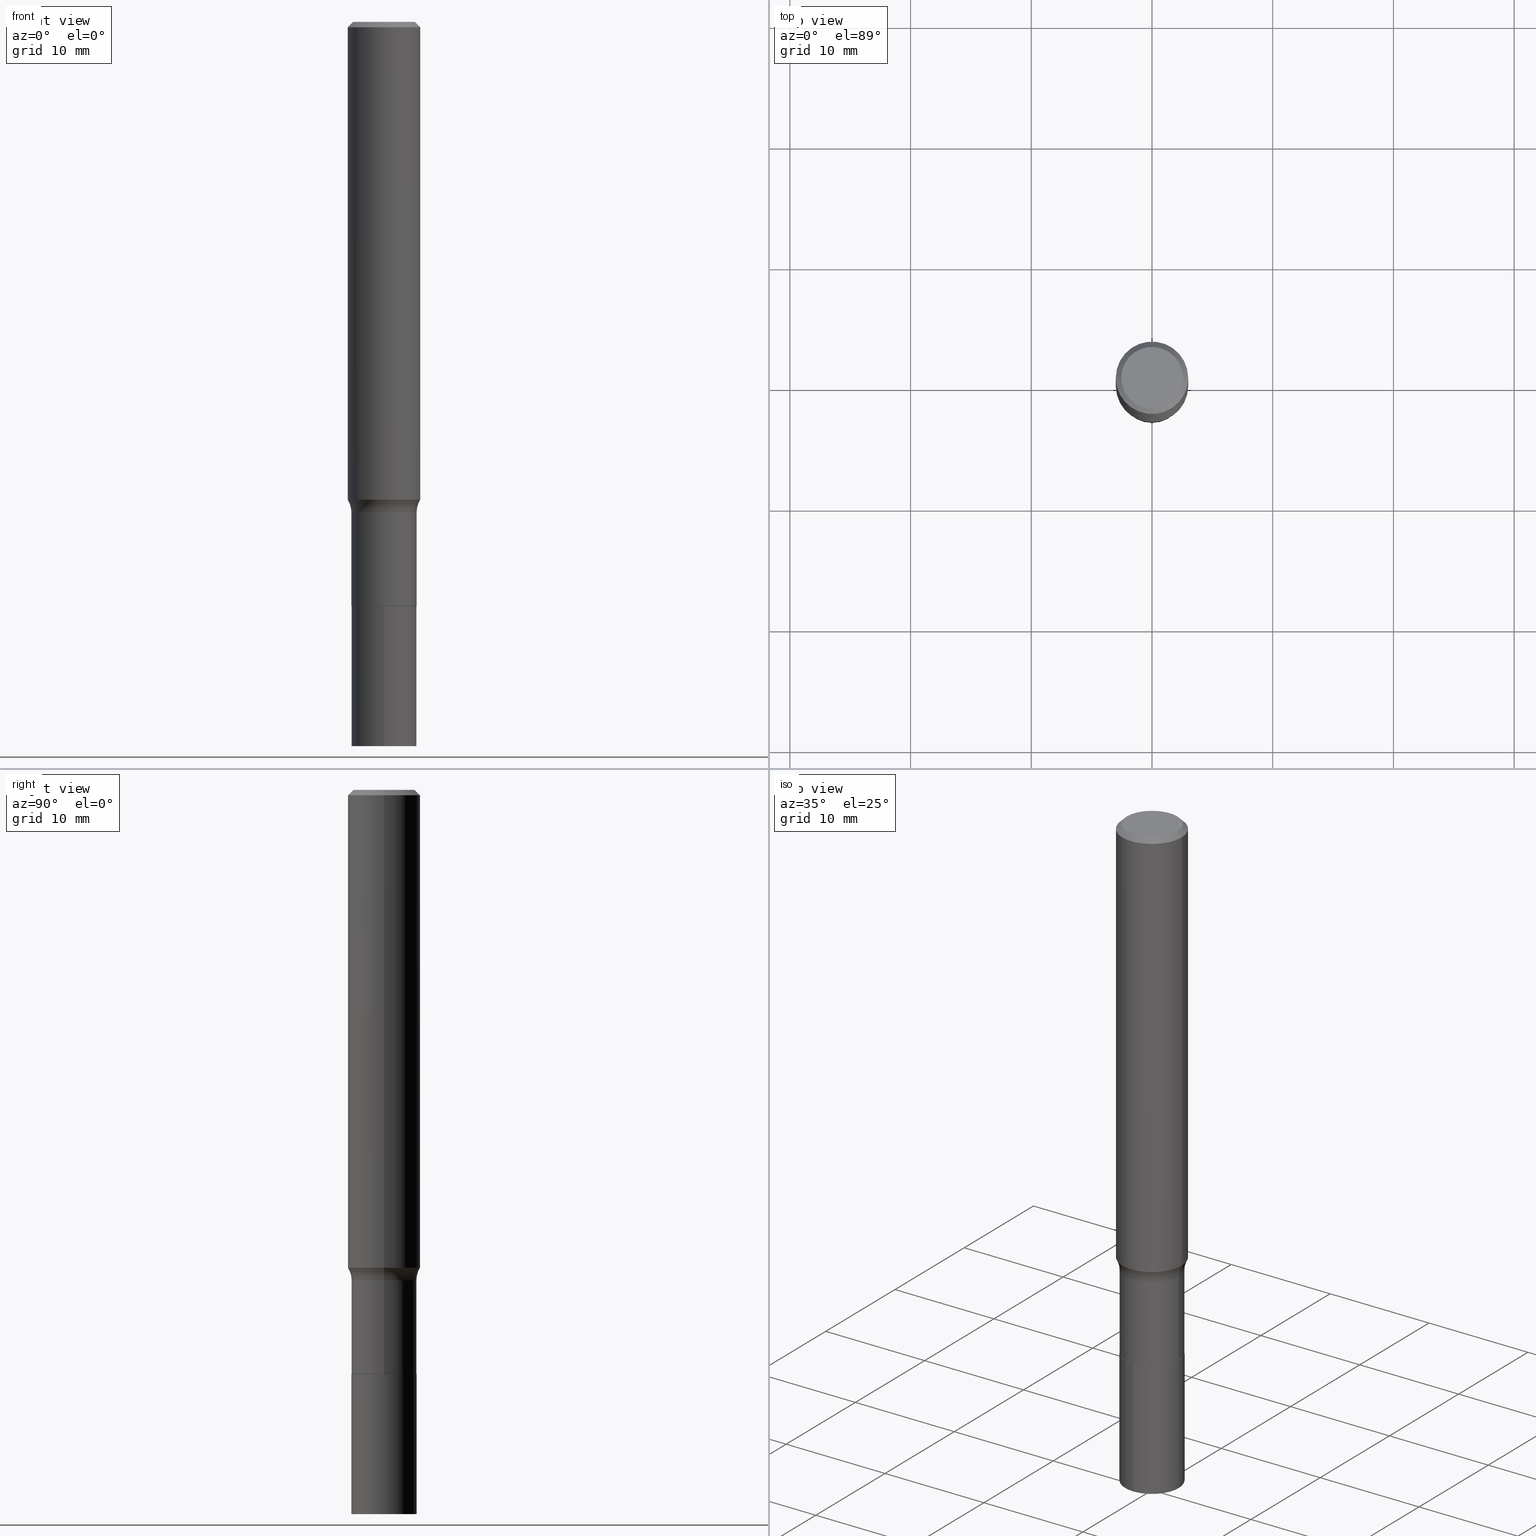
[diagram: canonical four-view strip — front | top / right | iso, engineering-drawing reading convention]
A machine part, canonical four-view strip (front | top / right | iso — engineering-drawing reading convention). The complete STEP part file that produces these views, byte-faithful:
ISO-10303-21;
HEADER;
FILE_DESCRIPTION (( 'STEP AP203' ),
    '1' );
FILE_NAME ('67099.STEP',
    '2024-04-19T15:51:24',
    ( '' ),
    ( '' ),
    'SwSTEP 2.0',
    'SolidWorks 2023',
    '' );
FILE_SCHEMA (( 'CONFIG_CONTROL_DESIGN' ));
ENDSEC;

DATA;
#1 = ORIENTED_EDGE ( 'NONE', *, *, #33, .T. ) ;
#2 = DIRECTION ( 'NONE',  ( -1.000000000000000000, 7.105427357601001859E-15, 0.000000000000000000 ) ) ;
#3 = CARTESIAN_POINT ( 'NONE',  ( 0.1862999999999999656, -6.888343533403638572E-15, -1.600300000000000500 ) ) ;
#4 = VECTOR ( 'NONE', #236, 39.37007874015748143 ) ;
#5 = CARTESIAN_POINT ( 'NONE',  ( -0.1058000000000000052, -5.900216032329776222E-15, -1.905200000000000227 ) ) ;
#6 = EDGE_CURVE ( 'NONE', #136, #96, #329, .T. ) ;
#7 = PRODUCT_RELATED_PRODUCT_CATEGORY ( 'detail', '', ( #159 ) ) ;
#8 = DIRECTION ( 'NONE',  ( 1.000000000000000000, -6.982962677686269077E-15, 0.000000000000000000 ) ) ;
#9 = CARTESIAN_POINT ( 'NONE',  ( 4.659107169543922763E-29, -6.651970246763962256E-15, -1.905200000000000227 ) ) ;
#10 = AXIS2_PLACEMENT_3D ( 'NONE', #190, #306, #12 ) ;
#11 =( GEOMETRIC_REPRESENTATION_CONTEXT ( 3 ) GLOBAL_UNCERTAINTY_ASSIGNED_CONTEXT ( ( #22 ) ) GLOBAL_UNIT_ASSIGNED_CONTEXT ( ( #44, #356, #459 ) ) REPRESENTATION_CONTEXT ( 'NONE', 'WORKASPACE' ) );
#12 = DIRECTION ( 'NONE',  ( -6.982962677686265922E-15, -1.000000000000000000, 2.569941668545873170E-15 ) ) ;
#13 = DIRECTION ( 'NONE',  ( 1.000000000000000000, -6.982962677686266711E-15, 0.000000000000000000 ) ) ;
#14 = ORIENTED_EDGE ( 'NONE', *, *, #350, .T. ) ;
#15 = DIRECTION ( 'NONE',  ( -2.480044218410043909E-29, 3.441967380626826386E-15, 1.000000000000000000 ) ) ;
#16 = AXIS2_PLACEMENT_3D ( 'NONE', #361, #311, #135 ) ;
#17 = EDGE_CURVE ( 'NONE', #152, #56, #107, .T. ) ;
#18 = APPROVAL ( #224, 'UNSPECIFIED' ) ;
#19 = DIRECTION ( 'NONE',  ( -1.000000000000000000, 6.982962677686266711E-15, 0.000000000000000000 ) ) ;
#20 = DIRECTION ( 'NONE',  ( -2.445468806185136597E-29, 3.491481338843145583E-15, 1.000000000000000000 ) ) ;
#21 = VERTEX_POINT ( 'NONE', #103 ) ;
#22 = UNCERTAINTY_MEASURE_WITH_UNIT (LENGTH_MEASURE( 1.000000000000000082E-05 ), #44, 'distance_accuracy_value', 'NONE');
#23 = CIRCLE ( 'NONE', #222, 0.08000000000000002942 ) ;
#24 = MECHANICAL_CONTEXT ( 'NONE', #102, 'mechanical' ) ;
#25 = DIRECTION ( 'NONE',  ( -2.445468806185136597E-29, 3.491481338843145583E-15, 1.000000000000000000 ) ) ;
#26 = PERSON_AND_ORGANIZATION_ROLE ( 'design_supplier' ) ;
#27 = DIRECTION ( 'NONE',  ( -2.445468806185136597E-29, 3.491481338843145583E-15, 1.000000000000000000 ) ) ;
#28 = CARTESIAN_POINT ( 'NONE',  ( 0.000000000000000000, 0.000000000000000000, 0.000000000000000000 ) ) ;
#29 = LINE ( 'NONE', #332, #383 ) ;
#30 = PERSON_AND_ORGANIZATION_ROLE ( 'creator' ) ;
#31 = CARTESIAN_POINT ( 'NONE',  ( 4.659107169543922763E-29, -6.651970246763962256E-15, -1.905200000000000227 ) ) ;
#32 = CYLINDRICAL_SURFACE ( 'NONE', #156, 0.1062999999999999917 ) ;
#33 = EDGE_CURVE ( 'NONE', #204, #293, #394, .T. ) ;
#34 = APPLICATION_CONTEXT ( 'configuration controlled 3d designs of mechanical parts and assemblies' ) ;
#35 = CARTESIAN_POINT ( 'NONE',  ( -7.422889326380034973E-16, -0.1063000000000066669, -1.905200000000000005 ) ) ;
#36 = CARTESIAN_POINT ( 'NONE',  ( 3.811218681036217302E-29, -5.441410198908476994E-15, -1.558481822134387462 ) ) ;
#37 = EDGE_CURVE ( 'NONE', #375, #124, #131, .T. ) ;
#38 = DIRECTION ( 'NONE',  ( 1.000000000000000000, -6.982962677686268288E-15, 0.000000000000000000 ) ) ;
#39 = FACE_OUTER_BOUND ( 'NONE', #80, .T. ) ;
#40 = EDGE_LOOP ( 'NONE', ( #193, #119, #225, #228 ) ) ;
#41 = CONICAL_SURFACE ( 'NONE', #173, 0.1180999999999999966, 0.7853981633974473908 ) ;
#42 = VERTEX_POINT ( 'NONE', #296 ) ;
#43 = FACE_OUTER_BOUND ( 'NONE', #309, .T. ) ;
#44 =( CONVERSION_BASED_UNIT ( 'INCH', #82 ) LENGTH_UNIT ( ) NAMED_UNIT ( #108 ) );
#45 = DIRECTION ( 'NONE',  ( -1.000000000000000000, 6.982962677686266711E-15, 0.000000000000000000 ) ) ;
#46 = CYLINDRICAL_SURFACE ( 'NONE', #10, 0.1063000000000000056 ) ;
#47 = ORIENTED_EDGE ( 'NONE', *, *, #402, .F. ) ;
#48 = CC_DESIGN_PERSON_AND_ORGANIZATION_ASSIGNMENT ( #422, #89, ( #159 ) ) ;
#49 = DIRECTION ( 'NONE',  ( -2.445468806185136877E-29, 3.491481338843145188E-15, 1.000000000000000000 ) ) ;
#50 = ORIENTED_EDGE ( 'NONE', *, *, #138, .T. ) ;
#51 = AXIS2_PLACEMENT_3D ( 'NONE', #198, #303, #13 ) ;
#52 = EDGE_LOOP ( 'NONE', ( #378, #395, #440, #281 ) ) ;
#53 = ORIENTED_EDGE ( 'NONE', *, *, #37, .T. ) ;
#54 = DIRECTION ( 'NONE',  ( 1.000000000000000000, -6.982962677686267499E-15, 4.883557194083113462E-29 ) ) ;
#55 = DIRECTION ( 'NONE',  ( 2.445468806185136597E-29, -3.491481338843145583E-15, -1.000000000000000000 ) ) ;
#56 = VERTEX_POINT ( 'NONE', #439 ) ;
#57 = EDGE_CURVE ( 'NONE', #124, #375, #399, .T. ) ;
#58 = EDGE_LOOP ( 'NONE', ( #446, #142, #456, #286 ) ) ;
#59 = APPLICATION_PROTOCOL_DEFINITION ( 'international standard', 'config_control_design', 1994, #34 ) ;
#60 = DIRECTION ( 'NONE',  ( -2.445468806185136597E-29, 3.491481338843145583E-15, 1.000000000000000000 ) ) ;
#61 = ORIENTED_EDGE ( 'NONE', *, *, #17, .F. ) ;
#62 = VECTOR ( 'NONE', #220, 39.37007874015748143 ) ;
#63 = ORIENTED_EDGE ( 'NONE', *, *, #369, .T. ) ;
#64 = DIRECTION ( 'NONE',  ( 1.000000000000000000, -6.982962677686264344E-15, 0.000000000000000000 ) ) ;
#65 = FACE_OUTER_BOUND ( 'NONE', #415, .T. ) ;
#66 = CARTESIAN_POINT ( 'NONE',  ( 5.792487377357313463E-29, -8.224949339710422363E-15, -2.362200000000000522 ) ) ;
#67 = DIRECTION ( 'NONE',  ( -2.445468806185136597E-29, 3.491481338843145583E-15, 1.000000000000000000 ) ) ;
#68 = DIRECTION ( 'NONE',  ( -2.445468806185136597E-29, 3.491481338843145583E-15, 1.000000000000000000 ) ) ;
#69 = AXIS2_PLACEMENT_3D ( 'NONE', #362, #105, #8 ) ;
#70 = FACE_OUTER_BOUND ( 'NONE', #414, .T. ) ;
#71 = CARTESIAN_POINT ( 'NONE',  ( 0.1058000000000000052, -7.390767698063169387E-15, -1.905200000000000227 ) ) ;
#72 = APPROVAL_STATUS ( 'not_yet_approved' ) ;
#73 = ADVANCED_FACE ( 'NONE', ( #256 ), #404, .T. ) ;
#74 = COORDINATED_UNIVERSAL_TIME_OFFSET ( 5, 0, .BEHIND. ) ;
#75 = AXIS2_PLACEMENT_3D ( 'NONE', #279, #244, #322 ) ;
#76 = CARTESIAN_POINT ( 'NONE',  ( 4.659107169543922763E-29, -6.651970246763962256E-15, -1.905200000000000227 ) ) ;
#77 = DIRECTION ( 'NONE',  ( -1.000000000000000000, 6.982962677686265922E-15, -4.876176775795935793E-29 ) ) ;
#78 = EDGE_CURVE ( 'NONE', #280, #375, #23, .T. ) ;
#79 = VECTOR ( 'NONE', #235, 39.37007874015748143 ) ;
#80 = EDGE_LOOP ( 'NONE', ( #1, #175 ) ) ;
#81 = LOCAL_TIME ( 11, 51, 24.00000000000000000, #382 ) ;
#82 = LENGTH_MEASURE_WITH_UNIT ( LENGTH_MEASURE( 0.02539999999999999897 ), #386 );
#83 = LINE ( 'NONE', #353, #4 ) ;
#84 = ORIENTED_EDGE ( 'NONE', *, *, #111, .F. ) ;
#85 = PERSON_AND_ORGANIZATION ( #265, #192 ) ;
#86 = ORIENTED_EDGE ( 'NONE', *, *, #188, .F. ) ;
#87 = CARTESIAN_POINT ( 'NONE',  ( 3.913483730538075020E-29, -5.587417586550687570E-15, -1.600300000000000500 ) ) ;
#88 = DIRECTION ( 'NONE',  ( -2.480044218410043629E-29, 3.441967380626826386E-15, 1.000000000000000000 ) ) ;
#89 = PERSON_AND_ORGANIZATION_ROLE ( 'design_owner' ) ;
#90 = VECTOR ( 'NONE', #147, 39.37007874015748143 ) ;
#91 = PERSON_AND_ORGANIZATION ( #265, #192 ) ;
#92 = DIRECTION ( 'NONE',  ( 2.445468806185136597E-29, -3.491481338843145583E-15, -1.000000000000000000 ) ) ;
#93 = DIRECTION ( 'NONE',  ( -2.480044218410043909E-29, 3.441967380626826386E-15, 1.000000000000000000 ) ) ;
#94 = APPROVAL_ROLE ( '' ) ;
#95 = CYLINDRICAL_SURFACE ( 'NONE', #458, 0.1181000000000001077 ) ;
#96 = VERTEX_POINT ( 'NONE', #71 ) ;
#97 = APPROVAL ( #387, 'UNSPECIFIED' ) ;
#98 = VERTEX_POINT ( 'NONE', #215 ) ;
#99 = ORIENTED_EDGE ( 'NONE', *, *, #149, .F. ) ;
#100 = CIRCLE ( 'NONE', #371, 0.1063000000000000056 ) ;
#101 = APPROVAL ( #72, 'UNSPECIFIED' ) ;
#102 = APPLICATION_CONTEXT ( 'configuration controlled 3d designs of mechanical parts and assemblies' ) ;
#103 = CARTESIAN_POINT ( 'NONE',  ( 0.1180999999999999966, -8.865394841523547570E-16, -0.01771500000000011260 ) ) ;
#104 = DATE_AND_TIME ( #426, #231 ) ;
#105 = DIRECTION ( 'NONE',  ( -2.445468806185136597E-29, 3.491481338843145583E-15, 1.000000000000000000 ) ) ;
#106 = PERSON_AND_ORGANIZATION ( #265, #192 ) ;
#107 = CIRCLE ( 'NONE', #122, 0.1062999999999999917 ) ;
#108 = DIMENSIONAL_EXPONENTS ( 1.000000000000000000, 0.000000000000000000, 0.000000000000000000, 0.000000000000000000, 0.000000000000000000, 0.000000000000000000, 0.000000000000000000 ) ;
#109 = AXIS2_PLACEMENT_3D ( 'NONE', #374, #208, #38 ) ;
#110 = DIRECTION ( 'NONE',  ( -2.445468806185136597E-29, 3.491481338843145583E-15, 1.000000000000000000 ) ) ;
#111 = EDGE_CURVE ( 'NONE', #42, #375, #29, .T. ) ;
#112 = PLANE ( 'NONE',  #409 ) ;
#113 = COORDINATED_UNIVERSAL_TIME_OFFSET ( 5, 0, .BEHIND. ) ;
#114 = AXIS2_PLACEMENT_3D ( 'NONE', #221, #366, #335 ) ;
#115 = ADVANCED_BREP_SHAPE_REPRESENTATION ( '67099', ( #158, #310, #251 ), #11 ) ;
#116 = CONICAL_SURFACE ( 'NONE', #438, 0.1058000000000000052, 0.7853981633975507526 ) ;
#117 = EDGE_CURVE ( 'NONE', #152, #328, #370, .T. ) ;
#118 = CARTESIAN_POINT ( 'NONE',  ( 7.553069281130443214E-16, 0.1062999999999933443, -1.905200000000000449 ) ) ;
#119 = ORIENTED_EDGE ( 'NONE', *, *, #6, .T. ) ;
#120 = FACE_OUTER_BOUND ( 'NONE', #316, .T. ) ;
#121 = LINE ( 'NONE', #413, #79 ) ;
#122 = AXIS2_PLACEMENT_3D ( 'NONE', #66, #326, #425 ) ;
#123 = ADVANCED_FACE ( 'NONE', ( #65 ), #112, .F. ) ;
#124 = VERTEX_POINT ( 'NONE', #128 ) ;
#125 = CARTESIAN_POINT ( 'NONE',  ( -0.1058000000000000052, -5.897566805155665021E-15, -1.905200000000000227 ) ) ;
#126 = ORIENTED_EDGE ( 'NONE', *, *, #317, .F. ) ;
#127 = CALENDAR_DATE ( 2024, 19, 4 ) ;
#128 = CARTESIAN_POINT ( 'NONE',  ( 0.1062999999999999640, -6.329706519188737709E-15, -1.600300000000000500 ) ) ;
#129 = ADVANCED_FACE ( 'NONE', ( #391 ), #239, .T. ) ;
#130 = CARTESIAN_POINT ( 'NONE',  ( -0.1062999999999999640, -5.363514118209626835E-15, -1.600300000000000500 ) ) ;
#131 = CIRCLE ( 'NONE', #282, 0.1062999999999999640 ) ;
#132 = EDGE_CURVE ( 'NONE', #275, #328, #297, .T. ) ;
#133 = VECTOR ( 'NONE', #299, 39.37007874015748143 ) ;
#134 = ORIENTED_EDGE ( 'NONE', *, *, #132, .F. ) ;
#135 = DIRECTION ( 'NONE',  ( 1.000000000000000000, -6.982962677686266711E-15, 4.875668750515089058E-29 ) ) ;
#136 = VERTEX_POINT ( 'NONE', #125 ) ;
#137 = APPROVAL_DATE_TIME ( #390, #97 ) ;
#138 = EDGE_CURVE ( 'NONE', #42, #98, #100, .T. ) ;
#139 = CARTESIAN_POINT ( 'NONE',  ( 4.008699684532606202E-46, -5.723360734012321624E-32, -1.639235664913700718E-17 ) ) ;
#140 = EDGE_LOOP ( 'NONE', ( #442, #380, #373, #99 ) ) ;
#141 = CLOSED_SHELL ( 'NONE', ( #227, #248, #261, #123 ) ) ;
#142 = ORIENTED_EDGE ( 'NONE', *, *, #144, .T. ) ;
#143 = APPROVAL_ROLE ( '' ) ;
#144 = EDGE_CURVE ( 'NONE', #293, #21, #83, .T. ) ;
#145 = CALENDAR_DATE ( 2024, 19, 4 ) ;
#146 = CIRCLE ( 'NONE', #16, 0.1003849999999999465 ) ;
#147 = DIRECTION ( 'NONE',  ( -2.480044218410043909E-29, 3.441967380626826386E-15, 1.000000000000000000 ) ) ;
#148 = CALENDAR_DATE ( 2024, 19, 4 ) ;
#149 = EDGE_CURVE ( 'NONE', #98, #124, #381, .T. ) ;
#150 = VECTOR ( 'NONE', #181, 39.37007874015748143 ) ;
#151 = ORIENTED_EDGE ( 'NONE', *, *, #400, .F. ) ;
#152 = VERTEX_POINT ( 'NONE', #444 ) ;
#153 = ADVANCED_FACE ( 'NONE', ( #267 ), #165, .F. ) ;
#154 = ORIENTED_EDGE ( 'NONE', *, *, #360, .T. ) ;
#155 = DIRECTION ( 'NONE',  ( -2.480044218410043909E-29, 3.441967380626826386E-15, 1.000000000000000000 ) ) ;
#156 = AXIS2_PLACEMENT_3D ( 'NONE', #186, #110, #466 ) ;
#157 = APPROVAL_PERSON_ORGANIZATION ( #172, #101, #143 ) ;
#158 = MANIFOLD_SOLID_BREP ( 'Body-Move/Copy2[1]', #141 ) ;
#159 = PRODUCT ( '67099', '67099', '', ( #24 ) ) ;
#160 = ADVANCED_FACE ( 'NONE', ( #416 ), #258, .F. ) ;
#161 = DIRECTION ( 'NONE',  ( -2.445468806185136597E-29, 3.491481338843145583E-15, 1.000000000000000000 ) ) ;
#162 = DIRECTION ( 'NONE',  ( -6.982962677686265922E-15, -1.000000000000000000, 3.441967380626826386E-15 ) ) ;
#163 = FACE_OUTER_BOUND ( 'NONE', #320, .T. ) ;
#164 = COORDINATED_UNIVERSAL_TIME_OFFSET ( 5, 0, .BEHIND. ) ;
#165 = TOROIDAL_SURFACE ( 'NONE', #273, 0.1862999999999999656, 0.08000000000000002942 ) ;
#166 = AXIS2_PLACEMENT_3D ( 'NONE', #139, #217, #77 ) ;
#167 = CARTESIAN_POINT ( 'NONE',  ( 4.659107169543922763E-29, -6.651970246763962256E-15, -1.905200000000000227 ) ) ;
#168 = ORIENTED_EDGE ( 'NONE', *, *, #385, .F. ) ;
#169 = DIRECTION ( 'NONE',  ( 1.000000000000000000, -6.982962677686264344E-15, 0.000000000000000000 ) ) ;
#170 = CARTESIAN_POINT ( 'NONE',  ( 4.332147990156996744E-31, -6.185159191760671627E-17, -0.01771500000000011260 ) ) ;
#171 = ORIENTED_EDGE ( 'NONE', *, *, #428, .F. ) ;
#172 = PERSON_AND_ORGANIZATION ( #265, #192 ) ;
#173 = AXIS2_PLACEMENT_3D ( 'NONE', #241, #55, #19 ) ;
#174 = CARTESIAN_POINT ( 'NONE',  ( 4.659107169543922763E-29, -6.651970246763962256E-15, -1.905200000000000227 ) ) ;
#175 = ORIENTED_EDGE ( 'NONE', *, *, #291, .T. ) ;
#176 = ADVANCED_FACE ( 'NONE', ( #70 ), #32, .T. ) ;
#177 = CC_DESIGN_PERSON_AND_ORGANIZATION_ASSIGNMENT ( #292, #26, ( #431 ) ) ;
#178 = CARTESIAN_POINT ( 'NONE',  ( 0.1181000000000001077, -8.246878922347488542E-16, 5.758764772215005345E-30 ) ) ;
#179 = APPROVAL_DATE_TIME ( #104, #18 ) ;
#180 = CARTESIAN_POINT ( 'NONE',  ( 3.913483730538075020E-29, -5.587417586550687570E-15, -1.600300000000000500 ) ) ;
#181 = DIRECTION ( 'NONE',  ( -2.480044218410043909E-29, 3.441967380626826386E-15, 1.000000000000000000 ) ) ;
#182 = LINE ( 'NONE', #178, #62 ) ;
#183 = DIRECTION ( 'NONE',  ( 1.000000000000000000, -6.982962677686266711E-15, 0.000000000000000000 ) ) ;
#184 = AXIS2_PLACEMENT_3D ( 'NONE', #344, #88, #162 ) ;
#185 = CC_DESIGN_APPROVAL ( #18, ( #431 ) ) ;
#186 = CARTESIAN_POINT ( 'NONE',  ( 0.000000000000000000, 0.000000000000000000, 0.000000000000000000 ) ) ;
#187 = ORIENTED_EDGE ( 'NONE', *, *, #132, .T. ) ;
#188 = EDGE_CURVE ( 'NONE', #56, #275, #301, .T. ) ;
#189 = ORIENTED_EDGE ( 'NONE', *, *, #57, .T. ) ;
#190 = CARTESIAN_POINT ( 'NONE',  ( 4.659107169543922763E-29, -6.651970246763962256E-15, -1.905200000000000227 ) ) ;
#191 = AXIS2_PLACEMENT_3D ( 'NONE', #321, #327, #351 ) ;
#192 = ORGANIZATION ( 'UNSPECIFIED', 'UNSPECIFIED', '' ) ;
#193 = ORIENTED_EDGE ( 'NONE', *, *, #455, .F. ) ;
#194 = DIRECTION ( 'NONE',  ( 1.000000000000000000, -6.982962677686269077E-15, 0.000000000000000000 ) ) ;
#195 = CC_DESIGN_PERSON_AND_ORGANIZATION_ASSIGNMENT ( #255, #364, ( #431 ) ) ;
#196 = CARTESIAN_POINT ( 'NONE',  ( 4.659107169543922763E-29, -6.651970246763962256E-15, -1.905200000000000227 ) ) ;
#197 = DIRECTION ( 'NONE',  ( 1.000000000000000000, -6.982962677686264344E-15, 0.000000000000000000 ) ) ;
#198 = CARTESIAN_POINT ( 'NONE',  ( 4.332147990156996744E-31, -6.185159191760671627E-17, -0.01771500000000011260 ) ) ;
#199 = ORIENTED_EDGE ( 'NONE', *, *, #117, .F. ) ;
#200 = VERTEX_POINT ( 'NONE', #295 ) ;
#201 = DIRECTION ( 'NONE',  ( -6.982962677686265922E-15, -1.000000000000000000, 2.569941668545873170E-15 ) ) ;
#202 = EDGE_LOOP ( 'NONE', ( #343, #450, #154, #189 ) ) ;
#203 = ORIENTED_EDGE ( 'NONE', *, *, #423, .T. ) ;
#204 = VERTEX_POINT ( 'NONE', #218 ) ;
#205 = AXIS2_PLACEMENT_3D ( 'NONE', #170, #427, #183 ) ;
#206 = DIRECTION ( 'NONE',  ( 1.000000000000000000, -6.982962677686266711E-15, 4.876176775795935793E-29 ) ) ;
#207 = EDGE_LOOP ( 'NONE', ( #86, #288, #300, #134 ) ) ;
#208 = DIRECTION ( 'NONE',  ( -2.445468806185136597E-29, 3.491481338843145583E-15, 1.000000000000000000 ) ) ;
#209 = CARTESIAN_POINT ( 'NONE',  ( -0.1862999999999999656, -4.263676469829620773E-15, -1.600300000000000500 ) ) ;
#210 = DIRECTION ( 'NONE',  ( 1.000000000000000000, -6.982962677686266711E-15, 4.875668750515089058E-29 ) ) ;
#211 = ADVANCED_FACE ( 'NONE', ( #367 ), #430, .T. ) ;
#212 = COORDINATED_UNIVERSAL_TIME_OFFSET ( 5, 0, .BEHIND. ) ;
#213 = AXIS2_PLACEMENT_3D ( 'NONE', #249, #68, #210 ) ;
#214 = CIRCLE ( 'NONE', #109, 0.1181000000000002048 ) ;
#215 = CARTESIAN_POINT ( 'NONE',  ( 0.1063000000000000056, -7.392513438732591680E-15, -1.904700000000000282 ) ) ;
#216 = DATE_AND_TIME ( #145, #377 ) ;
#217 = DIRECTION ( 'NONE',  ( 2.438088387897960049E-29, -3.491481338843145188E-15, -1.000000000000000000 ) ) ;
#218 = CARTESIAN_POINT ( 'NONE',  ( -0.1003849999999999465, 7.319105043583383731E-16, -3.278471329827902485E-17 ) ) ;
#219 = DATE_TIME_ROLE ( 'creation_date' ) ;
#220 = DIRECTION ( 'NONE',  ( -2.445468806185136877E-29, 3.491481338843145188E-15, 1.000000000000000000 ) ) ;
#221 = CARTESIAN_POINT ( 'NONE',  ( 3.913483730538075020E-29, -5.587417586550687570E-15, -1.600300000000000500 ) ) ;
#222 = AXIS2_PLACEMENT_3D ( 'NONE', #209, #250, #2 ) ;
#223 = VECTOR ( 'NONE', #372, 39.37007874015748143 ) ;
#224 = APPROVAL_STATUS ( 'not_yet_approved' ) ;
#225 = ORIENTED_EDGE ( 'NONE', *, *, #317, .T. ) ;
#226 = DIRECTION ( 'NONE',  ( 1.000000000000000000, -6.982962677686265922E-15, 4.876176775795935793E-29 ) ) ;
#227 = ADVANCED_FACE ( 'NONE', ( #348 ), #46, .T. ) ;
#228 = ORIENTED_EDGE ( 'NONE', *, *, #138, .F. ) ;
#229 = DATE_TIME_ROLE ( 'classification_date' ) ;
#230 = AXIS2_PLACEMENT_3D ( 'NONE', #418, #93, #201 ) ;
#231 = LOCAL_TIME ( 11, 51, 24.00000000000000000, #74 ) ;
#232 = FACE_OUTER_BOUND ( 'NONE', #207, .T. ) ;
#233 = EDGE_LOOP ( 'NONE', ( #339, #349, #168, #199 ) ) ;
#234 = DIRECTION ( 'NONE',  ( -2.445468806185136597E-29, 3.491481338843145583E-15, 1.000000000000000000 ) ) ;
#235 = DIRECTION ( 'NONE',  ( 0.7071067811866199593, -2.468850131083015945E-15, 0.7071067811864750752 ) ) ;
#236 = DIRECTION ( 'NONE',  ( 0.7071067811865469066, -7.319954787623254468E-15, -0.7071067811865481278 ) ) ;
#237 = ORIENTED_EDGE ( 'NONE', *, *, #360, .F. ) ;
#238 = ORIENTED_EDGE ( 'NONE', *, *, #78, .T. ) ;
#239 = CONICAL_SURFACE ( 'NONE', #449, 0.1180999999999999966, 0.7853981633974473908 ) ;
#240 = VECTOR ( 'NONE', #268, 39.37007874015748143 ) ;
#241 = CARTESIAN_POINT ( 'NONE',  ( 4.332147990156996744E-31, -6.185159191760671627E-17, -0.01771500000000011260 ) ) ;
#242 = CARTESIAN_POINT ( 'NONE',  ( 0.000000000000000000, 0.000000000000000000, 0.000000000000000000 ) ) ;
#243 = ORIENTED_EDGE ( 'NONE', *, *, #6, .F. ) ;
#244 = DIRECTION ( 'NONE',  ( -2.480044218410043909E-29, 3.441967380626826386E-15, 1.000000000000000000 ) ) ;
#245 = EDGE_CURVE ( 'NONE', #204, #407, #308, .T. ) ;
#246 = ORIENTED_EDGE ( 'NONE', *, *, #149, .T. ) ;
#247 = CIRCLE ( 'NONE', #384, 0.1181000000000002048 ) ;
#248 = ADVANCED_FACE ( 'NONE', ( #120 ), #417, .F. ) ;
#249 = CARTESIAN_POINT ( 'NONE',  ( 8.017399369065212404E-46, -1.144672146802464325E-31, -3.278471329827401435E-17 ) ) ;
#250 = DIRECTION ( 'NONE',  ( 7.105427357601001859E-15, 1.000000000000000000, -3.491481338843145583E-15 ) ) ;
#251 = AXIS2_PLACEMENT_3D ( 'NONE', #330, #462, #287 ) ;
#252 = CARTESIAN_POINT ( 'NONE',  ( 7.553069281130329815E-16, 0.1062999999999933443, -1.905200000000000449 ) ) ;
#253 = DATE_AND_TIME ( #148, #342 ) ;
#254 = LINE ( 'NONE', #403, #223 ) ;
#255 = PERSON_AND_ORGANIZATION ( #265, #192 ) ;
#256 = FACE_OUTER_BOUND ( 'NONE', #140, .T. ) ;
#257 = DESIGN_CONTEXT ( 'detailed design', #34, 'design' ) ;
#258 = TOROIDAL_SURFACE ( 'NONE', #318, 0.1862999999999999656, 0.08000000000000002942 ) ;
#259 = CC_DESIGN_APPROVAL ( #101, ( #278 ) ) ;
#260 = PRODUCT_DEFINITION_SHAPE ( 'NONE', 'NONE',  #278 ) ;
#261 = ADVANCED_FACE ( 'NONE', ( #232 ), #272, .T. ) ;
#262 = CC_DESIGN_DATE_AND_TIME_ASSIGNMENT ( #216, #219, ( #278 ) ) ;
#263 = AXIS2_PLACEMENT_3D ( 'NONE', #447, #419, #226 ) ;
#264 = APPROVAL_PERSON_ORGANIZATION ( #91, #97, #94 ) ;
#265 = PERSON ( 'UNSPECIFIED', 'UNSPECIFIED', 'UNSPECIFIED', ('UNSPECIFIED'), ('UNSPECIFIED'), ('UNSPECIFIED') ) ;
#266 = DIRECTION ( 'NONE',  ( -6.982962677686265922E-15, -1.000000000000000000, 2.569941668545873170E-15 ) ) ;
#267 = FACE_OUTER_BOUND ( 'NONE', #420, .T. ) ;
#268 = DIRECTION ( 'NONE',  ( -0.7071067811865469066, 2.468850131082250355E-15, -0.7071067811865481278 ) ) ;
#269 = CARTESIAN_POINT ( 'NONE',  ( -7.422889326380034973E-16, -0.1063000000000066669, -1.905200000000000005 ) ) ;
#270 = DATE_AND_TIME ( #127, #81 ) ;
#271 = FACE_OUTER_BOUND ( 'NONE', #52, .T. ) ;
#272 = CYLINDRICAL_SURFACE ( 'NONE', #230, 0.1063000000000000056 ) ;
#273 = AXIS2_PLACEMENT_3D ( 'NONE', #87, #161, #54 ) ;
#274 = AXIS2_PLACEMENT_3D ( 'NONE', #167, #452, #64 ) ;
#275 = VERTEX_POINT ( 'NONE', #118 ) ;
#276 = ADVANCED_FACE ( 'NONE', ( #43 ), #396, .T. ) ;
#277 = ORIENTED_EDGE ( 'NONE', *, *, #400, .T. ) ;
#278 = PRODUCT_DEFINITION ( 'UNKNOWN', '', #431, #257 ) ;
#279 = CARTESIAN_POINT ( 'NONE',  ( 5.792487377357313463E-29, -8.224949339710422363E-15, -2.362200000000000522 ) ) ;
#280 = VERTEX_POINT ( 'NONE', #284 ) ;
#281 = ORIENTED_EDGE ( 'NONE', *, *, #428, .T. ) ;
#282 = AXIS2_PLACEMENT_3D ( 'NONE', #363, #25, #331 ) ;
#283 = CIRCLE ( 'NONE', #410, 0.1063000000000000056 ) ;
#284 = CARTESIAN_POINT ( 'NONE',  ( -0.1181000000000002187, -4.602259227975794853E-15, -1.558481822134387462 ) ) ;
#285 = DIRECTION ( 'NONE',  ( -2.445468806185136597E-29, 3.491481338843145583E-15, 1.000000000000000000 ) ) ;
#286 = ORIENTED_EDGE ( 'NONE', *, *, #245, .F. ) ;
#287 = DIRECTION ( 'NONE',  ( 1.000000000000000000, 0.000000000000000000, 0.000000000000000000 ) ) ;
#288 = ORIENTED_EDGE ( 'NONE', *, *, #402, .T. ) ;
#289 = SECURITY_CLASSIFICATION ( '', '', #433 ) ;
#290 = DIRECTION ( 'NONE',  ( 1.000000000000000000, -6.982962677686267499E-15, 4.876176775795935232E-29 ) ) ;
#291 = EDGE_CURVE ( 'NONE', #293, #204, #146, .T. ) ;
#292 = PERSON_AND_ORGANIZATION ( #265, #192 ) ;
#293 = VERTEX_POINT ( 'NONE', #315 ) ;
#294 = DIRECTION ( 'NONE',  ( 2.480044218410043629E-29, -3.441967380626826386E-15, -1.000000000000000000 ) ) ;
#295 = CARTESIAN_POINT ( 'NONE',  ( 0.1181000000000002187, -6.266098091143226046E-15, -1.558481822134387462 ) ) ;
#296 = CARTESIAN_POINT ( 'NONE',  ( -0.1063000000000000056, -5.363514118209626835E-15, -1.904700000000000282 ) ) ;
#297 = CIRCLE ( 'NONE', #346, 0.1063000000000000056 ) ;
#298 = ADVANCED_FACE ( 'NONE', ( #325 ), #95, .T. ) ;
#299 = DIRECTION ( 'NONE',  ( -0.7071067811866199593, 7.493145998870616062E-15, 0.7071067811864750752 ) ) ;
#300 = ORIENTED_EDGE ( 'NONE', *, *, #117, .T. ) ;
#301 = LINE ( 'NONE', #252, #90 ) ;
#302 = PLANE ( 'NONE',  #166 ) ;
#303 = DIRECTION ( 'NONE',  ( -2.445468806185136597E-29, 3.491481338843145583E-15, 1.000000000000000000 ) ) ;
#304 = CARTESIAN_POINT ( 'NONE',  ( 4.332147990156996744E-31, -6.185159191760671627E-17, -0.01771500000000011260 ) ) ;
#305 = APPROVAL_PERSON_ORGANIZATION ( #368, #18, #467 ) ;
#306 = DIRECTION ( 'NONE',  ( -2.480044218410043909E-29, 3.441967380626826386E-15, 1.000000000000000000 ) ) ;
#307 = ORIENTED_EDGE ( 'NONE', *, *, #369, .F. ) ;
#308 = LINE ( 'NONE', #445, #240 ) ;
#309 = EDGE_LOOP ( 'NONE', ( #203, #63, #358, #463 ) ) ;
#310 = MANIFOLD_SOLID_BREP ( 'Body-Move/Copy2[2]', #436 ) ;
#311 = DIRECTION ( 'NONE',  ( -2.445468806185136597E-29, 3.491481338843145583E-15, 1.000000000000000000 ) ) ;
#312 = PLANE ( 'NONE',  #263 ) ;
#313 = ORIENTED_EDGE ( 'NONE', *, *, #461, .F. ) ;
#314 = CALENDAR_DATE ( 2024, 19, 4 ) ;
#315 = CARTESIAN_POINT ( 'NONE',  ( 0.1003849999999999465, -7.803837484803597373E-16, -3.278471329826883745E-17 ) ) ;
#316 = EDGE_LOOP ( 'NONE', ( #61, #47 ) ) ;
#317 = EDGE_CURVE ( 'NONE', #96, #98, #121, .T. ) ;
#318 = AXIS2_PLACEMENT_3D ( 'NONE', #180, #67, #401 ) ;
#319 = CIRCLE ( 'NONE', #274, 0.1058000000000000052 ) ;
#320 = EDGE_LOOP ( 'NONE', ( #151, #243 ) ) ;
#321 = CARTESIAN_POINT ( 'NONE',  ( 0.000000000000000000, 0.000000000000000000, 0.000000000000000000 ) ) ;
#322 = DIRECTION ( 'NONE',  ( -6.982962677686265922E-15, -1.000000000000000000, 2.569941668545873564E-15 ) ) ;
#323 = ORIENTED_EDGE ( 'NONE', *, *, #385, .T. ) ;
#324 = DIRECTION ( 'NONE',  ( 1.000000000000000000, -6.982962677686264344E-15, 0.000000000000000000 ) ) ;
#325 = FACE_OUTER_BOUND ( 'NONE', #392, .T. ) ;
#326 = DIRECTION ( 'NONE',  ( -2.480044218410043909E-29, 3.441967380626826386E-15, 1.000000000000000000 ) ) ;
#327 = DIRECTION ( 'NONE',  ( -2.445468806185136597E-29, 3.491481338843145583E-15, 1.000000000000000000 ) ) ;
#328 = VERTEX_POINT ( 'NONE', #269 ) ;
#329 = CIRCLE ( 'NONE', #355, 0.1058000000000000052 ) ;
#330 = CARTESIAN_POINT ( 'NONE',  ( 0.000000000000000000, 0.000000000000000000, 0.000000000000000000 ) ) ;
#331 = DIRECTION ( 'NONE',  ( 1.000000000000000000, -6.982962677686271444E-15, 0.000000000000000000 ) ) ;
#332 = CARTESIAN_POINT ( 'NONE',  ( -0.1062999999999999917, 7.553069281129864387E-16, -5.228828000940964357E-30 ) ) ;
#333 = EDGE_CURVE ( 'NONE', #21, #407, #465, .T. ) ;
#334 = DIRECTION ( 'NONE',  ( 1.000000000000000000, -6.982962677686269077E-15, 0.000000000000000000 ) ) ;
#335 = DIRECTION ( 'NONE',  ( 1.000000000000000000, -6.982962677686271444E-15, 0.000000000000000000 ) ) ;
#336 = APPROVAL_DATE_TIME ( #253, #101 ) ;
#337 = ADVANCED_FACE ( 'NONE', ( #163 ), #312, .F. ) ;
#338 = FACE_OUTER_BOUND ( 'NONE', #388, .T. ) ;
#339 = ORIENTED_EDGE ( 'NONE', *, *, #17, .T. ) ;
#340 = ADVANCED_FACE ( 'NONE', ( #39 ), #302, .F. ) ;
#341 = LINE ( 'NONE', #5, #133 ) ;
#342 = LOCAL_TIME ( 11, 51, 24.00000000000000000, #212 ) ;
#343 = ORIENTED_EDGE ( 'NONE', *, *, #78, .F. ) ;
#344 = CARTESIAN_POINT ( 'NONE',  ( 1.537527942236728561E-29, -1.431829342805434278E-14, -2.362200000000000077 ) ) ;
#345 = CC_DESIGN_DATE_AND_TIME_ASSIGNMENT ( #270, #229, ( #289 ) ) ;
#346 = AXIS2_PLACEMENT_3D ( 'NONE', #9, #155, #266 ) ;
#347 = CIRCLE ( 'NONE', #205, 0.1180999999999999966 ) ;
#348 = FACE_OUTER_BOUND ( 'NONE', #233, .T. ) ;
#349 = ORIENTED_EDGE ( 'NONE', *, *, #188, .T. ) ;
#350 = EDGE_CURVE ( 'NONE', #200, #21, #182, .T. ) ;
#351 = DIRECTION ( 'NONE',  ( 1.000000000000000000, -6.982962677686266711E-15, 4.876176775795935793E-29 ) ) ;
#352 = ORIENTED_EDGE ( 'NONE', *, *, #455, .T. ) ;
#353 = CARTESIAN_POINT ( 'NONE',  ( 0.1180999999999999966, -8.720764054544245267E-16, -0.01771500000000011260 ) ) ;
#354 = CC_DESIGN_PERSON_AND_ORGANIZATION_ASSIGNMENT ( #106, #30, ( #278 ) ) ;
#355 = AXIS2_PLACEMENT_3D ( 'NONE', #359, #20, #169 ) ;
#356 =( NAMED_UNIT ( * ) PLANE_ANGLE_UNIT ( ) SI_UNIT ( $, .RADIAN. ) );
#357 = LOCAL_TIME ( 11, 51, 24.00000000000000000, #164 ) ;
#358 = ORIENTED_EDGE ( 'NONE', *, *, #333, .F. ) ;
#359 = CARTESIAN_POINT ( 'NONE',  ( 4.659107169543922763E-29, -6.651970246763962256E-15, -1.905200000000000227 ) ) ;
#360 = EDGE_CURVE ( 'NONE', #200, #124, #406, .T. ) ;
#361 = CARTESIAN_POINT ( 'NONE',  ( 8.017399369065212404E-46, -1.144672146802464325E-31, -3.278471329827401435E-17 ) ) ;
#362 = CARTESIAN_POINT ( 'NONE',  ( 4.657884435140829962E-29, -6.650224506094540752E-15, -1.904700000000000282 ) ) ;
#363 = CARTESIAN_POINT ( 'NONE',  ( 3.913483730538075020E-29, -5.587417586550687570E-15, -1.600300000000000500 ) ) ;
#364 = PERSON_AND_ORGANIZATION_ROLE ( 'creator' ) ;
#365 = CC_DESIGN_SECURITY_CLASSIFICATION ( #289, ( #431 ) ) ;
#366 = DIRECTION ( 'NONE',  ( -2.445468806185136597E-29, 3.491481338843145583E-15, 1.000000000000000000 ) ) ;
#367 = FACE_OUTER_BOUND ( 'NONE', #40, .T. ) ;
#368 = PERSON_AND_ORGANIZATION ( #265, #192 ) ;
#369 = EDGE_CURVE ( 'NONE', #280, #407, #254, .T. ) ;
#370 = LINE ( 'NONE', #35, #150 ) ;
#371 = AXIS2_PLACEMENT_3D ( 'NONE', #443, #412, #194 ) ;
#372 = DIRECTION ( 'NONE',  ( -2.445468806185136877E-29, 3.491481338843145188E-15, 1.000000000000000000 ) ) ;
#373 = ORIENTED_EDGE ( 'NONE', *, *, #57, .F. ) ;
#374 = CARTESIAN_POINT ( 'NONE',  ( 3.811218681036217302E-29, -5.441410198908476994E-15, -1.558481822134387462 ) ) ;
#375 = VERTEX_POINT ( 'NONE', #130 ) ;
#376 = AXIS2_PLACEMENT_3D ( 'NONE', #28, #432, #290 ) ;
#377 = LOCAL_TIME ( 11, 51, 24.00000000000000000, #113 ) ;
#378 = ORIENTED_EDGE ( 'NONE', *, *, #144, .F. ) ;
#379 = ADVANCED_FACE ( 'NONE', ( #271 ), #41, .T. ) ;
#380 = ORIENTED_EDGE ( 'NONE', *, *, #111, .T. ) ;
#381 = LINE ( 'NONE', #389, #437 ) ;
#382 = COORDINATED_UNIVERSAL_TIME_OFFSET ( 5, 0, .BEHIND. ) ;
#383 = VECTOR ( 'NONE', #464, 39.37007874015748143 ) ;
#384 = AXIS2_PLACEMENT_3D ( 'NONE', #36, #285, #457 ) ;
#385 = EDGE_CURVE ( 'NONE', #328, #275, #283, .T. ) ;
#386 =( LENGTH_UNIT ( ) NAMED_UNIT ( * ) SI_UNIT ( $, .METRE. ) );
#387 = APPROVAL_STATUS ( 'not_yet_approved' ) ;
#388 = EDGE_LOOP ( 'NONE', ( #277, #352, #313, #126 ) ) ;
#389 = CARTESIAN_POINT ( 'NONE',  ( 0.1062999999999999917, -7.422889326380501387E-16, 5.183375912671078649E-30 ) ) ;
#390 = DATE_AND_TIME ( #314, #357 ) ;
#391 = FACE_OUTER_BOUND ( 'NONE', #58, .T. ) ;
#392 = EDGE_LOOP ( 'NONE', ( #307, #421, #14, #171 ) ) ;
#393 = CARTESIAN_POINT ( 'NONE',  ( -0.1180999999999999966, -1.912479924480361427E-15, -0.01771500000000011260 ) ) ;
#394 = CIRCLE ( 'NONE', #213, 0.1003849999999999465 ) ;
#395 = ORIENTED_EDGE ( 'NONE', *, *, #33, .F. ) ;
#396 = CYLINDRICAL_SURFACE ( 'NONE', #191, 0.1181000000000001077 ) ;
#397 = APPLICATION_PROTOCOL_DEFINITION ( 'international standard', 'config_control_design', 1994, #102 ) ;
#398 = ORIENTED_EDGE ( 'NONE', *, *, #37, .F. ) ;
#399 = CIRCLE ( 'NONE', #114, 0.1062999999999999640 ) ;
#400 = EDGE_CURVE ( 'NONE', #96, #136, #319, .T. ) ;
#401 = DIRECTION ( 'NONE',  ( 1.000000000000000000, -6.982962677686267499E-15, 4.883557194083113462E-29 ) ) ;
#402 = EDGE_CURVE ( 'NONE', #56, #152, #460, .T. ) ;
#403 = CARTESIAN_POINT ( 'NONE',  ( -0.1181000000000001077, 8.391509709326790846E-16, -5.809262341591049389E-30 ) ) ;
#404 = CYLINDRICAL_SURFACE ( 'NONE', #376, 0.1062999999999999917 ) ;
#405 = AXIS2_PLACEMENT_3D ( 'NONE', #31, #234, #197 ) ;
#406 = CIRCLE ( 'NONE', #468, 0.08000000000000002942 ) ;
#407 = VERTEX_POINT ( 'NONE', #393 ) ;
#408 = ADVANCED_FACE ( 'NONE', ( #338 ), #116, .T. ) ;
#409 = AXIS2_PLACEMENT_3D ( 'NONE', #76, #294, #434 ) ;
#410 = AXIS2_PLACEMENT_3D ( 'NONE', #196, #15, #454 ) ;
#411 = CC_DESIGN_PERSON_AND_ORGANIZATION_ASSIGNMENT ( #85, #441, ( #289 ) ) ;
#412 = DIRECTION ( 'NONE',  ( -2.445468806185136597E-29, 3.491481338843145583E-15, 1.000000000000000000 ) ) ;
#413 = CARTESIAN_POINT ( 'NONE',  ( 0.1058000000000000052, -7.390767698063169387E-15, -1.905200000000000227 ) ) ;
#414 = EDGE_LOOP ( 'NONE', ( #84, #50, #246, #398 ) ) ;
#415 = EDGE_LOOP ( 'NONE', ( #323, #187 ) ) ;
#416 = FACE_OUTER_BOUND ( 'NONE', #202, .T. ) ;
#417 = PLANE ( 'NONE',  #184 ) ;
#418 = CARTESIAN_POINT ( 'NONE',  ( 4.659107169543922763E-29, -6.651970246763962256E-15, -1.905200000000000227 ) ) ;
#419 = DIRECTION ( 'NONE',  ( -2.438088387897960049E-29, 3.491481338843145188E-15, 1.000000000000000000 ) ) ;
#420 = EDGE_LOOP ( 'NONE', ( #453, #238, #53, #237 ) ) ;
#421 = ORIENTED_EDGE ( 'NONE', *, *, #429, .T. ) ;
#422 = PERSON_AND_ORGANIZATION ( #265, #192 ) ;
#423 = EDGE_CURVE ( 'NONE', #200, #280, #247, .T. ) ;
#424 = CIRCLE ( 'NONE', #69, 0.1063000000000000056 ) ;
#425 = DIRECTION ( 'NONE',  ( -6.982962677686265922E-15, -1.000000000000000000, 2.569941668545873564E-15 ) ) ;
#426 = CALENDAR_DATE ( 2024, 19, 4 ) ;
#427 = DIRECTION ( 'NONE',  ( -2.445468806185136597E-29, 3.491481338843145583E-15, 1.000000000000000000 ) ) ;
#428 = EDGE_CURVE ( 'NONE', #407, #21, #347, .T. ) ;
#429 = EDGE_CURVE ( 'NONE', #280, #200, #214, .T. ) ;
#430 = CONICAL_SURFACE ( 'NONE', #405, 0.1058000000000000052, 0.7853981633975507526 ) ;
#431 = PRODUCT_DEFINITION_FORMATION_WITH_SPECIFIED_SOURCE ( 'ANY', '', #159, .NOT_KNOWN. ) ;
#432 = DIRECTION ( 'NONE',  ( -2.445468806185136597E-29, 3.491481338843145583E-15, 1.000000000000000000 ) ) ;
#433 = SECURITY_CLASSIFICATION_LEVEL ( 'unclassified' ) ;
#434 = DIRECTION ( 'NONE',  ( 6.982962677686265922E-15, 1.000000000000000000, -3.441967380626826386E-15 ) ) ;
#435 = DIRECTION ( 'NONE',  ( -6.982962677686266711E-15, -1.000000000000000000, 3.491481338843145583E-15 ) ) ;
#436 = CLOSED_SHELL ( 'NONE', ( #408, #129, #276, #153, #73, #176, #160, #298, #379, #340, #337, #211 ) ) ;
#437 = VECTOR ( 'NONE', #49, 39.37007874015748143 ) ;
#438 = AXIS2_PLACEMENT_3D ( 'NONE', #174, #27, #324 ) ;
#439 = CARTESIAN_POINT ( 'NONE',  ( 7.553069281130386022E-16, 0.1062999999999917622, -2.362200000000000966 ) ) ;
#440 = ORIENTED_EDGE ( 'NONE', *, *, #245, .T. ) ;
#441 = PERSON_AND_ORGANIZATION_ROLE ( 'classification_officer' ) ;
#442 = ORIENTED_EDGE ( 'NONE', *, *, #461, .T. ) ;
#443 = CARTESIAN_POINT ( 'NONE',  ( 4.657884435140829962E-29, -6.650224506094540752E-15, -1.904700000000000282 ) ) ;
#444 = CARTESIAN_POINT ( 'NONE',  ( -7.422889326379921574E-16, -0.1063000000000082212, -2.362200000000000077 ) ) ;
#445 = CARTESIAN_POINT ( 'NONE',  ( -0.1180999999999999966, 7.628363003171413738E-16, -0.01771500000000011260 ) ) ;
#446 = ORIENTED_EDGE ( 'NONE', *, *, #291, .F. ) ;
#447 = CARTESIAN_POINT ( 'NONE',  ( 4.659107169543922763E-29, -6.651970246763962256E-15, -1.905200000000000227 ) ) ;
#448 = SHAPE_DEFINITION_REPRESENTATION ( #260, #115 ) ;
#449 = AXIS2_PLACEMENT_3D ( 'NONE', #304, #92, #45 ) ;
#450 = ORIENTED_EDGE ( 'NONE', *, *, #423, .F. ) ;
#451 = CC_DESIGN_APPROVAL ( #97, ( #289 ) ) ;
#452 = DIRECTION ( 'NONE',  ( -2.445468806185136597E-29, 3.491481338843145583E-15, 1.000000000000000000 ) ) ;
#453 = ORIENTED_EDGE ( 'NONE', *, *, #429, .F. ) ;
#454 = DIRECTION ( 'NONE',  ( -6.982962677686265922E-15, -1.000000000000000000, 2.569941668545873170E-15 ) ) ;
#455 = EDGE_CURVE ( 'NONE', #136, #42, #341, .T. ) ;
#456 = ORIENTED_EDGE ( 'NONE', *, *, #333, .T. ) ;
#457 = DIRECTION ( 'NONE',  ( 1.000000000000000000, -6.982962677686268288E-15, 0.000000000000000000 ) ) ;
#458 = AXIS2_PLACEMENT_3D ( 'NONE', #242, #60, #206 ) ;
#459 =( NAMED_UNIT ( * ) SI_UNIT ( $, .STERADIAN. ) SOLID_ANGLE_UNIT ( ) );
#460 = CIRCLE ( 'NONE', #75, 0.1062999999999999917 ) ;
#461 = EDGE_CURVE ( 'NONE', #98, #42, #424, .T. ) ;
#462 = DIRECTION ( 'NONE',  ( 0.000000000000000000, 0.000000000000000000, 1.000000000000000000 ) ) ;
#463 = ORIENTED_EDGE ( 'NONE', *, *, #350, .F. ) ;
#464 = DIRECTION ( 'NONE',  ( -2.445468806185136877E-29, 3.491481338843145188E-15, 1.000000000000000000 ) ) ;
#465 = CIRCLE ( 'NONE', #51, 0.1180999999999999966 ) ;
#466 = DIRECTION ( 'NONE',  ( 1.000000000000000000, -6.982962677686267499E-15, 4.876176775795935232E-29 ) ) ;
#467 = APPROVAL_ROLE ( '' ) ;
#468 = AXIS2_PLACEMENT_3D ( 'NONE', #3, #435, #334 ) ;
ENDSEC;
END-ISO-10303-21;
